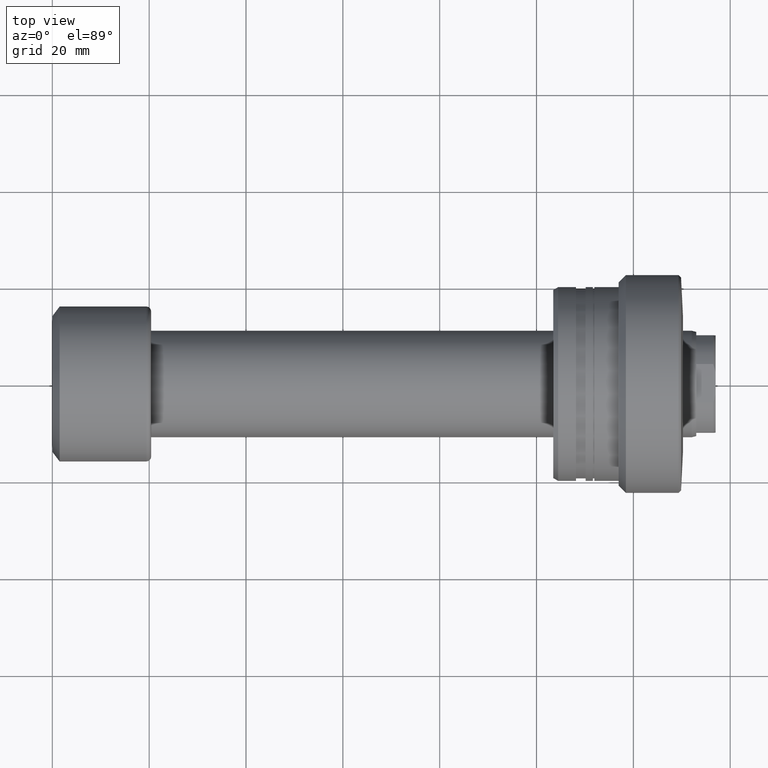
[diagram: clean part render]
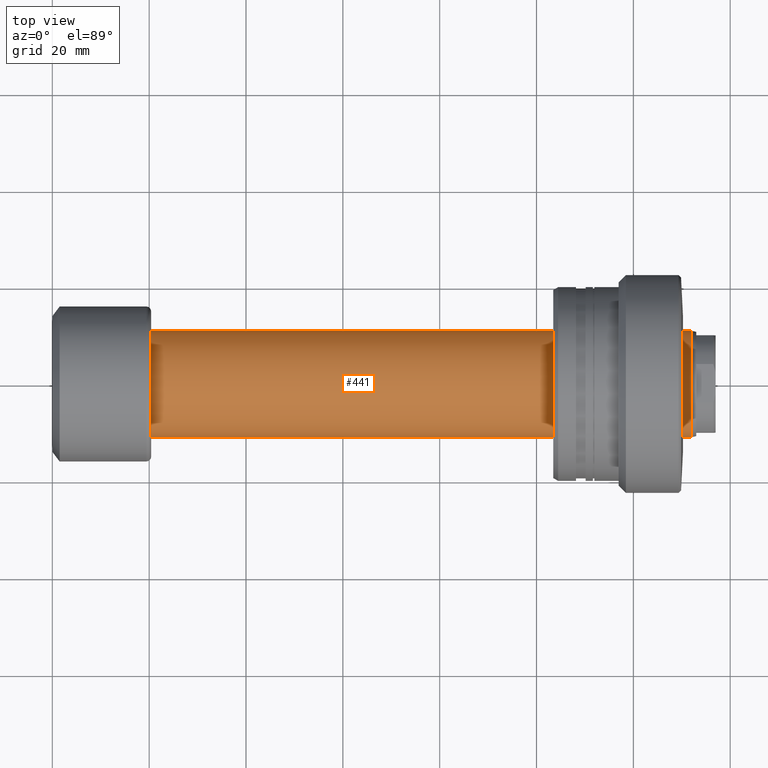
[diagram: same view with one face highlighted and labeled with its STEP entity id]
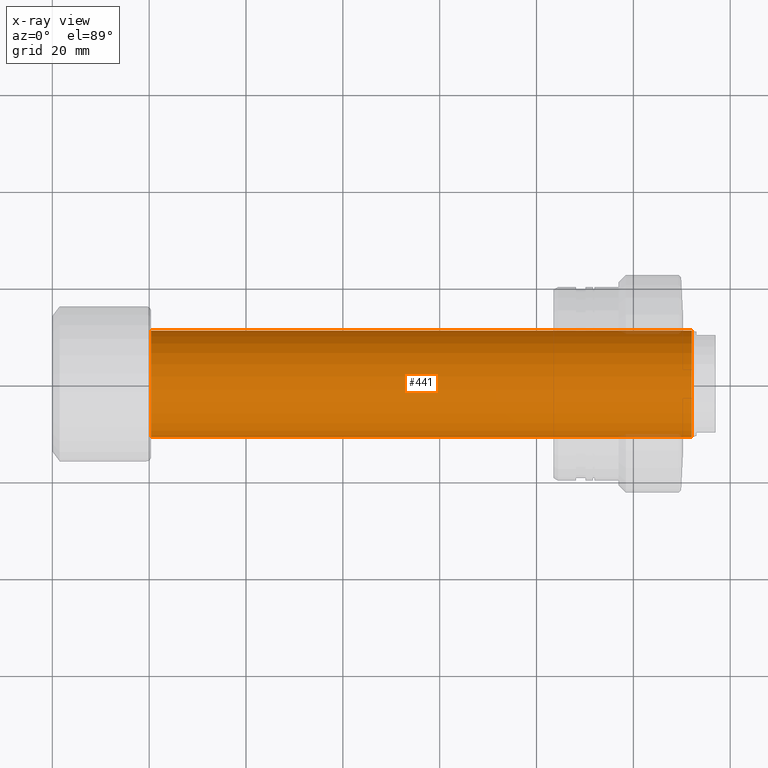
[diagram: x-ray of the same camera — body ghosted, the highlighted face saturated]
A machine part, top view. The second image highlights one B-rep face of the part: STEP entity #441.
The next image is the same camera in x-ray: the body ghosted, the highlighted face saturated — about 1% of this face is hidden behind the body in this view.
In plain terms, the highlighted cylindrical surface (partial cylindrical patch) has radius 11 mm, axis along (-1, -0, -0).
Its self-contained STEP definition (entity closure, byte-faithful):
#12 = EDGE_LOOP ( 'NONE', ( #1346, #1772, #945, #496 ) ) ;
#52 = VERTEX_POINT ( 'NONE', #1110 ) ;
#100 = CARTESIAN_POINT ( 'NONE',  ( 20.39999999999999503, 2.181866337020893623E-16, 0.000000000000000000 ) ) ;
#200 = LINE ( 'NONE', #2445, #1022 ) ;
#441 = ADVANCED_FACE ( 'NONE', ( #1132 ), #988, .T. ) ;
#448 = DIRECTION ( 'NONE',  ( -1.000000000000000000, -1.069542322069065801E-17, -0.000000000000000000 ) ) ;
#481 = VERTEX_POINT ( 'NONE', #2251 ) ;
#496 = ORIENTED_EDGE ( 'NONE', *, *, #552, .F. ) ;
#552 = EDGE_CURVE ( 'NONE', #669, #52, #200, .T. ) ;
#624 = AXIS2_PLACEMENT_3D ( 'NONE', #1918, #1318, #1708 ) ;
#669 = VERTEX_POINT ( 'NONE', #1969 ) ;
#945 = ORIENTED_EDGE ( 'NONE', *, *, #2286, .F. ) ;
#988 = CYLINDRICAL_SURFACE ( 'NONE', #624, 11.00000000000009592 ) ;
#1022 = VECTOR ( 'NONE', #2094, 1000.000000000000000 ) ;
#1110 = CARTESIAN_POINT ( 'NONE',  ( 20.39999999999999503, -11.00000000000000000, 0.000000000000000000 ) ) ;
#1128 = DIRECTION ( 'NONE',  ( -1.000000000000000000, -1.069542322069065801E-17, -0.000000000000000000 ) ) ;
#1132 = FACE_OUTER_BOUND ( 'NONE', #12, .T. ) ;
#1149 = CIRCLE ( 'NONE', #1469, 11.00000000000019362 ) ;
#1315 = LINE ( 'NONE', #1326, #1968 ) ;
#1318 = DIRECTION ( 'NONE',  ( -1.000000000000000000, -1.069542322069065801E-17, -0.000000000000000000 ) ) ;
#1326 = CARTESIAN_POINT ( 'NONE',  ( -1.176496554275982688E-16, 11.00000000000009592, 1.347111479062100435E-15 ) ) ;
#1346 = ORIENTED_EDGE ( 'NONE', *, *, #2237, .T. ) ;
#1437 = DIRECTION ( 'NONE',  ( -1.000000000000000000, -1.069542322069065801E-17, -0.000000000000000000 ) ) ;
#1469 = AXIS2_PLACEMENT_3D ( 'NONE', #1780, #1437, #2331 ) ;
#1531 = EDGE_CURVE ( 'NONE', #2325, #481, #1315, .T. ) ;
#1661 = AXIS2_PLACEMENT_3D ( 'NONE', #100, #448, #1995 ) ;
#1708 = DIRECTION ( 'NONE',  ( 1.069542322069065801E-17, -1.000000000000000000, 0.000000000000000000 ) ) ;
#1772 = ORIENTED_EDGE ( 'NONE', *, *, #1531, .T. ) ;
#1780 = CARTESIAN_POINT ( 'NONE',  ( 132.0667575123237611, 1.412509864978630128E-15, 0.000000000000000000 ) ) ;
#1918 = CARTESIAN_POINT ( 'NONE',  ( 0.000000000000000000, 0.000000000000000000, 0.000000000000000000 ) ) ;
#1968 = VECTOR ( 'NONE', #1128, 1000.000000000000000 ) ;
#1969 = CARTESIAN_POINT ( 'NONE',  ( 132.0667575123237611, -11.00000000000019185, 0.000000000000000000 ) ) ;
#1995 = DIRECTION ( 'NONE',  ( 0.000000000000000000, -1.000000000000000000, 0.000000000000000000 ) ) ;
#2090 = CIRCLE ( 'NONE', #1661, 11.00000000000000000 ) ;
#2094 = DIRECTION ( 'NONE',  ( -1.000000000000000000, -1.069542322069065801E-17, -0.000000000000000000 ) ) ;
#2167 = CARTESIAN_POINT ( 'NONE',  ( 132.0667575123237611, 11.00000000000019362, 1.347111479062112268E-15 ) ) ;
#2237 = EDGE_CURVE ( 'NONE', #669, #2325, #1149, .T. ) ;
#2251 = CARTESIAN_POINT ( 'NONE',  ( 20.39999999999999503, 11.00000000000000000, 1.347111479062094321E-15 ) ) ;
#2286 = EDGE_CURVE ( 'NONE', #52, #481, #2090, .T. ) ;
#2325 = VERTEX_POINT ( 'NONE', #2167 ) ;
#2331 = DIRECTION ( 'NONE',  ( 0.000000000000000000, -1.000000000000000000, 0.000000000000000000 ) ) ;
#2445 = CARTESIAN_POINT ( 'NONE',  ( 1.176496554275982688E-16, -11.00000000000009592, 0.000000000000000000 ) ) ;